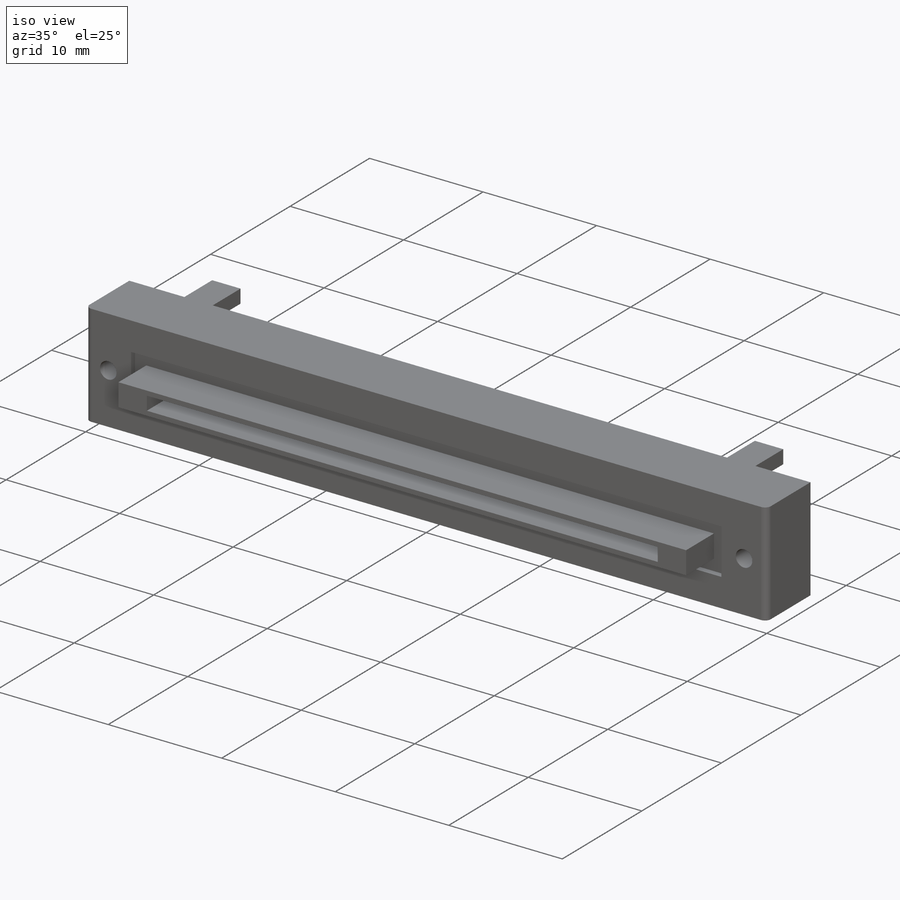
[diagram: iso view]
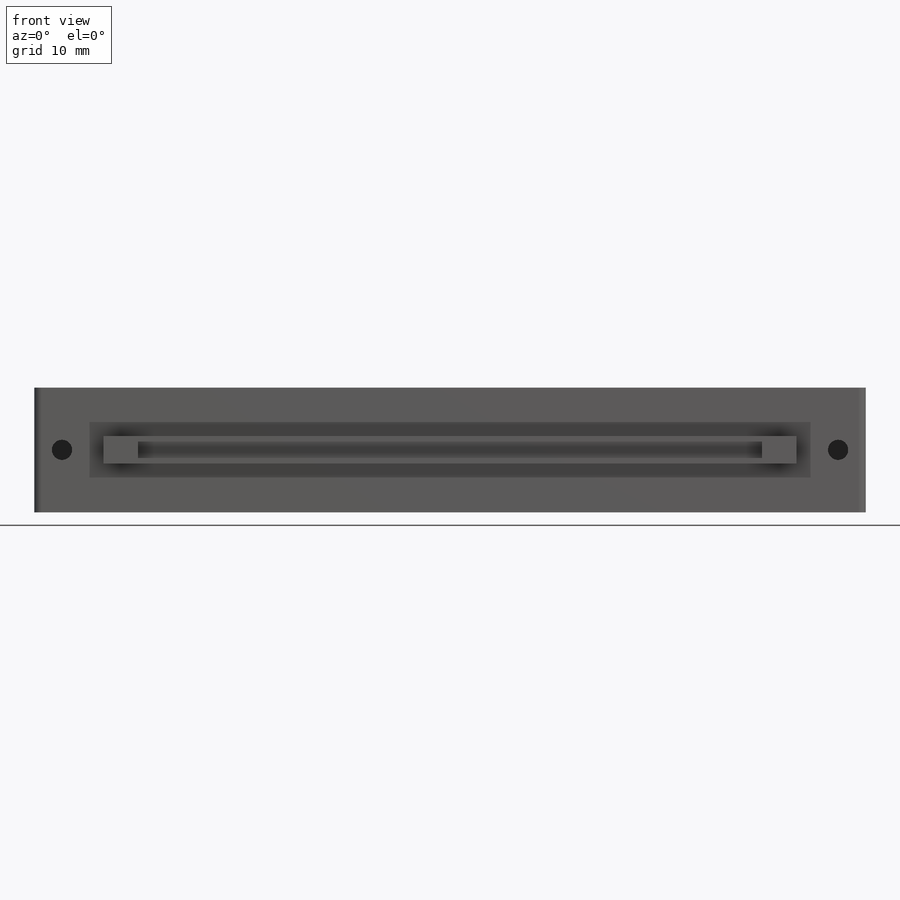
[diagram: front view]
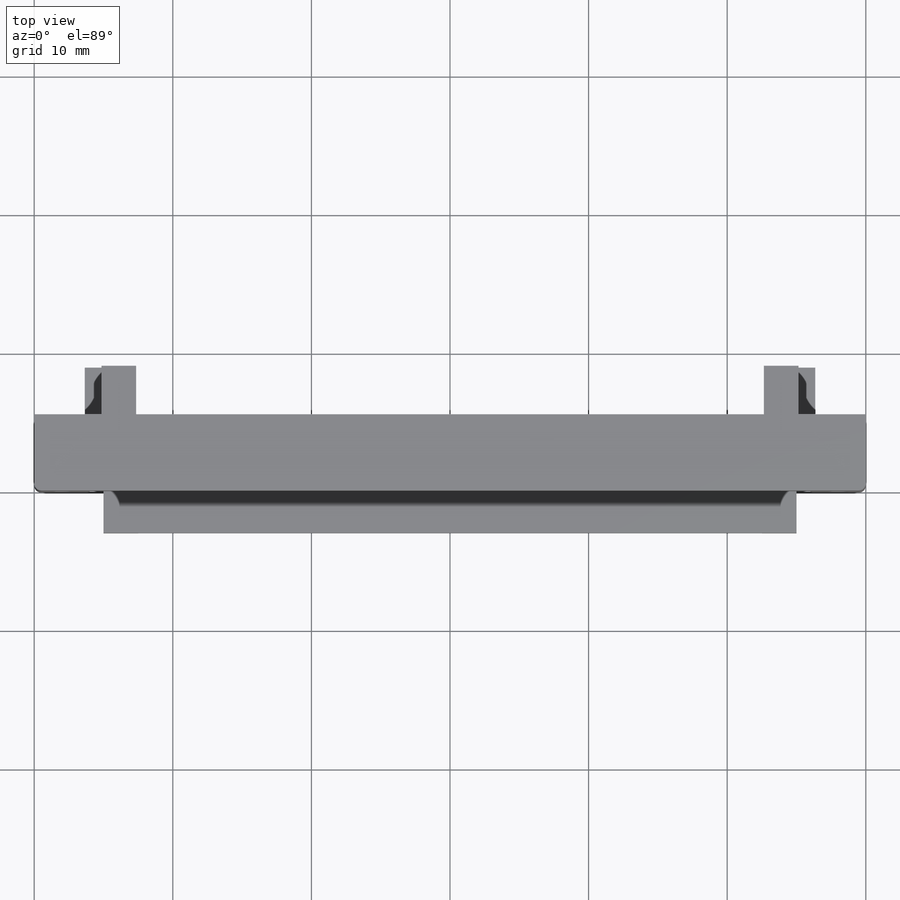
[diagram: top view]
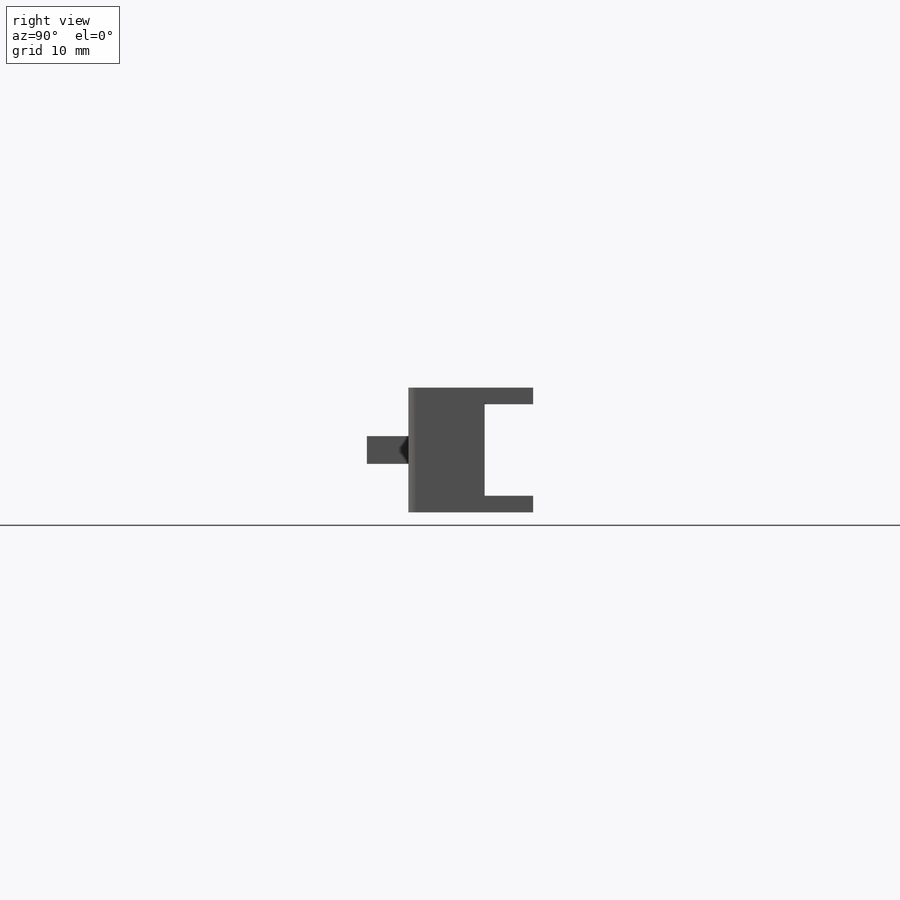
[diagram: right view]
SOLIDWORKS PART (.sldprt)
format: sldprt  version: not decoded by parser v0  size: 260,608 bytes
history: native  units: mm
features: sketch x6, plane x3, extrude x3, cut_extrude x3, material x1, fillet x1 (+10 scaffold rows collapsed)
feature tree (27):
  scaffold x10  (default folders/planes/origin — collapsed)
  material  "Material <nicht angegeben>"
  plane  "Ebene vorne"
  plane  "Ebene oben"
  plane  "Ebene rechts"
  sketch  "Skizze1"  dims[c1.D1=~35.264441mm c1.D2=~120.05583mm c2.D1=60.0mm c2.D2=9.0mm]
  extrude  "body"  Depth=5.5mm
  sketch  "Skizze4"  dims[D1=28.0mm D2=56.0mm]
  cut_extrude  "screw holes"  Depth=3mm
  sketch  "Skizze5"  dims[c1.D1=~6.036104mm c1.D2=~9.13567mm c2.D1=~4.279761mm c2.D2=~50.934443mm c3.D1=~9.732494mm c3.D2=~9.00335mm c4.D1=52.0mm c4.D2=4.0mm]
  cut_extrude  "Schnitt-Linear austragen3"  Depth=0.5mm
  fillet  "Verrundung1"  Radius=0.5mm
  sketch  "pathway of glider"  dims[c1.D1=~1.215241mm c1.D2=~48.609635mm c2.D1=50.0mm c2.D2=2.0mm]
  extrude  "pathway"  Depth=6mm
  sketch  "Skizze7"  dims[c1.D1=~2.057403mm c1.D2=~47.834053mm c2.D1=1.2mm c2.D2=45.0mm]
  cut_extrude  "45mm"  Depth=3mm
  sketch  "flap"  dims[c1.D1=~63.119348mm c1.D2=~49.840438mm c2.D1=0.6mm c2.D2=0.6mm c2.D3=50.2mm c2.D4=4.9mm c2.D5=~1.050919mm c2.D6=~4.432941mm c3.D5=2.5mm c3.D6=~1.050919mm c3.D7=~2.681191mm c4.D6=2.5mm c4.D7=47.8mm c4.D8=6.1mm c4.D9=1.2mm c4.D10=~3.399029mm c5.D9=1.2mm c5.D10=~3.601934mm c6.D9=2.5mm c6.D10=2.5mm c6.D5=1.2mm c6.D6=~3.866084mm c7.D5=1.2mm c7.D6=~4.907959mm c8.D5=2.5mm c8.D6=2.5mm]
  extrude  "flaps"  Depth=3.5mm
decode coverage: 13 of 13 modeling features carry decoded parameters
note: ~ marks probable driven/reference dimensions
note: suppression state not decoded; provenance and decode notes live in map.json
